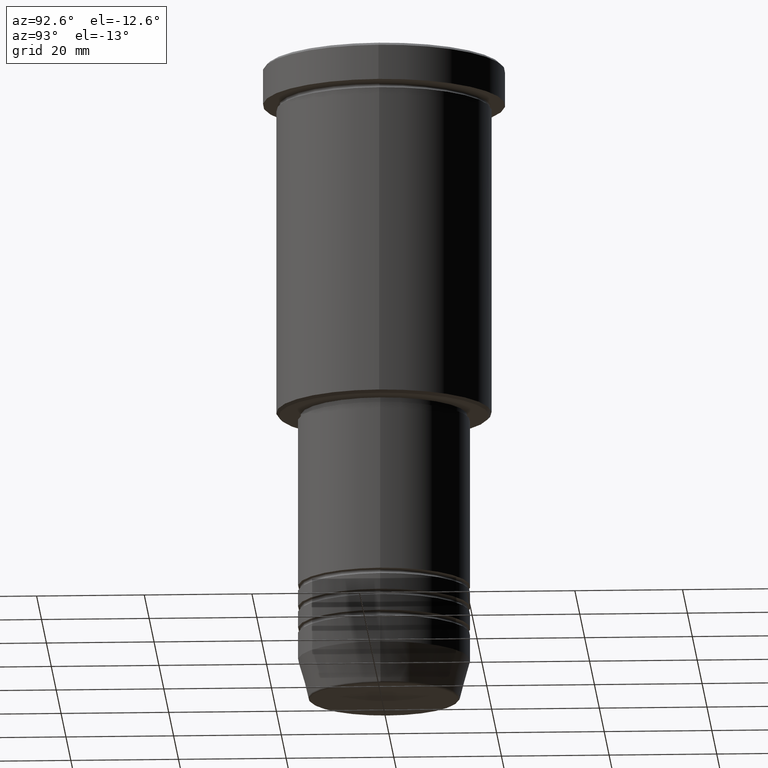
[diagram: clean part render]
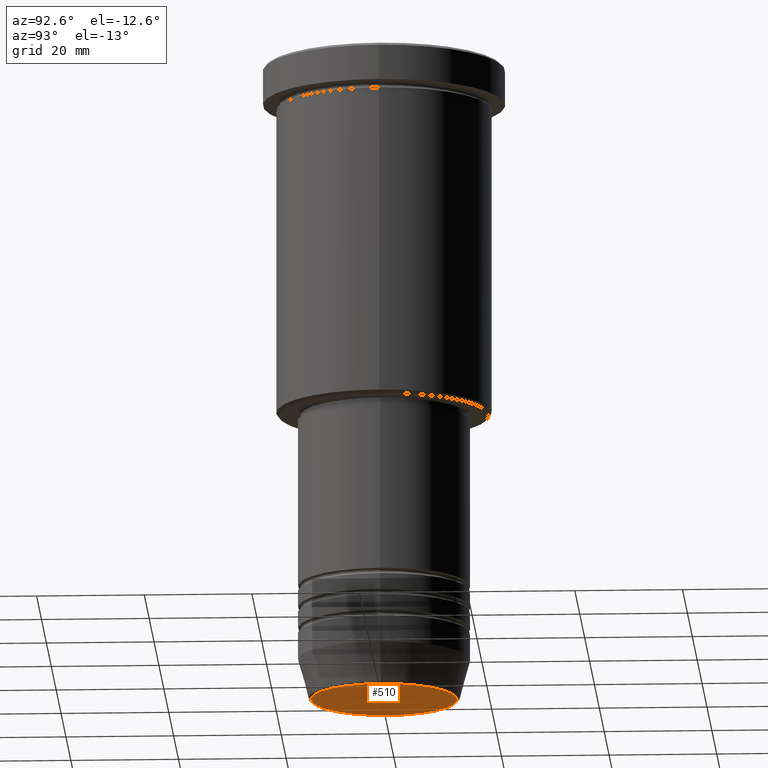
[diagram: same view with one face highlighted and labeled with its STEP entity id]
A machine part, auxiliary view. The second image highlights one B-rep face of the part: STEP entity #510.
In plain terms, the highlighted planar face has unit normal (0, -0, 1).
Its self-contained STEP definition (entity closure, byte-faithful):
#12 = CIRCLE ( 'NONE', #817, 13.60671756277709221 ) ;
#59 = FACE_OUTER_BOUND ( 'NONE', #197, .T. ) ;
#60 = EDGE_CURVE ( 'NONE', #1159, #938, #1130, .T. ) ;
#75 = CARTESIAN_POINT ( 'NONE',  ( 0.000000000000000000, 0.000000000000000000, -120.0000000000000000 ) ) ;
#81 = DIRECTION ( 'NONE',  ( 1.000000000000000000, 0.000000000000000000, 0.000000000000000000 ) ) ;
#197 = EDGE_LOOP ( 'NONE', ( #317, #1142 ) ) ;
#284 = DIRECTION ( 'NONE',  ( 0.000000000000000000, 0.000000000000000000, -1.000000000000000000 ) ) ;
#317 = ORIENTED_EDGE ( 'NONE', *, *, #60, .T. ) ;
#322 = CARTESIAN_POINT ( 'NONE',  ( 13.60671756277709221, 0.000000000000000000, -120.0000000000000000 ) ) ;
#344 = DIRECTION ( 'NONE',  ( 1.000000000000000000, 0.000000000000000000, 0.000000000000000000 ) ) ;
#389 = EDGE_CURVE ( 'NONE', #938, #1159, #12, .T. ) ;
#402 = PLANE ( 'NONE',  #662 ) ;
#510 = ADVANCED_FACE ( 'NONE', ( #59 ), #402, .F. ) ;
#513 = CARTESIAN_POINT ( 'NONE',  ( 0.000000000000000000, 0.000000000000000000, -120.0000000000000000 ) ) ;
#599 = DIRECTION ( 'NONE',  ( 0.000000000000000000, 0.000000000000000000, -1.000000000000000000 ) ) ;
#662 = AXIS2_PLACEMENT_3D ( 'NONE', #513, #1031, #784 ) ;
#784 = DIRECTION ( 'NONE',  ( 1.000000000000000000, 0.000000000000000000, 0.000000000000000000 ) ) ;
#817 = AXIS2_PLACEMENT_3D ( 'NONE', #905, #284, #81 ) ;
#889 = CARTESIAN_POINT ( 'NONE',  ( -13.60671756277709221, 1.695915260300170666E-15, -120.0000000000000000 ) ) ;
#905 = CARTESIAN_POINT ( 'NONE',  ( 0.000000000000000000, 0.000000000000000000, -120.0000000000000000 ) ) ;
#938 = VERTEX_POINT ( 'NONE', #889 ) ;
#1031 = DIRECTION ( 'NONE',  ( 0.000000000000000000, -0.000000000000000000, 1.000000000000000000 ) ) ;
#1073 = AXIS2_PLACEMENT_3D ( 'NONE', #75, #599, #344 ) ;
#1130 = CIRCLE ( 'NONE', #1073, 13.60671756277709221 ) ;
#1142 = ORIENTED_EDGE ( 'NONE', *, *, #389, .T. ) ;
#1159 = VERTEX_POINT ( 'NONE', #322 ) ;